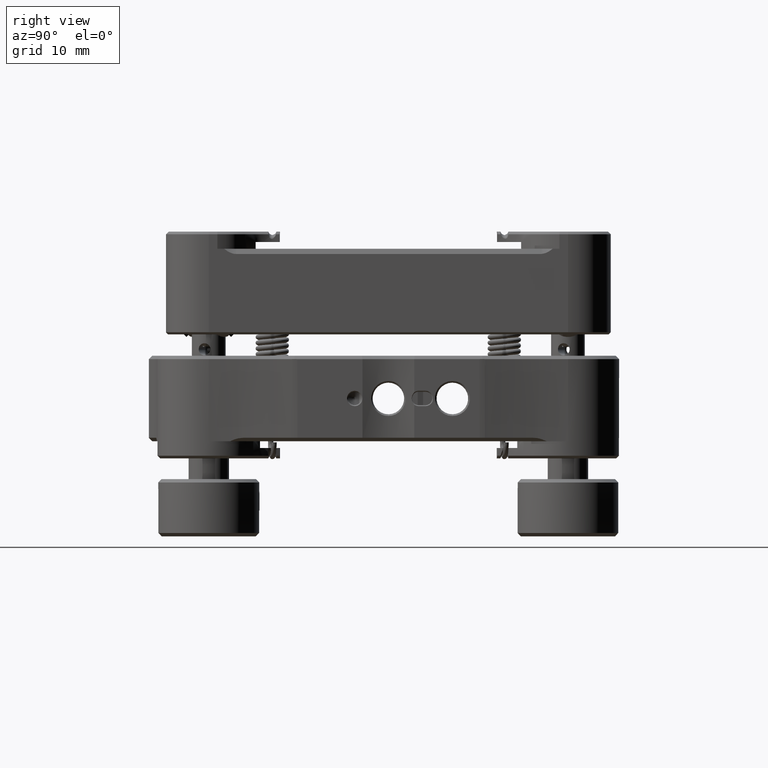
[diagram: clean part render]
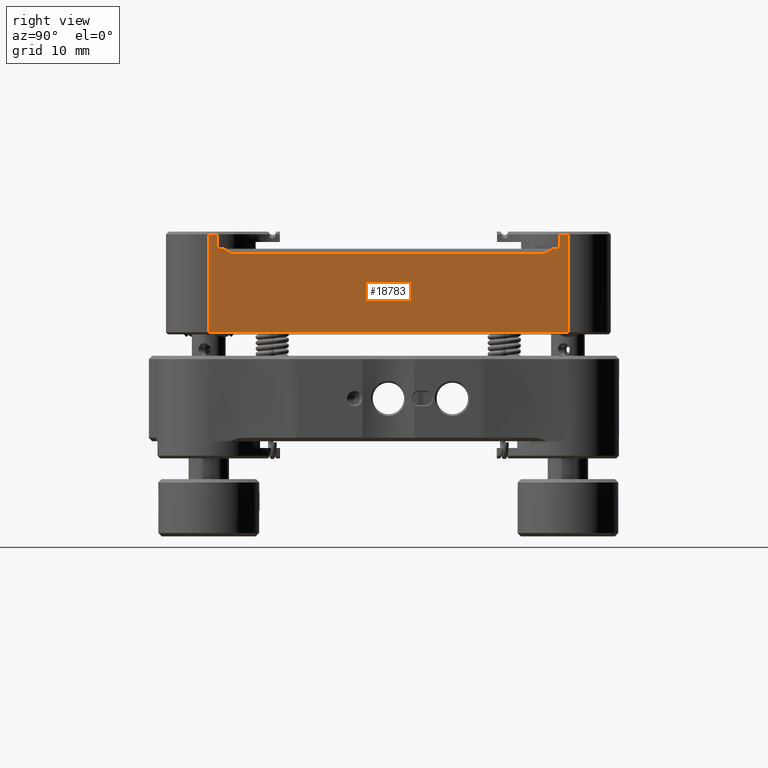
[diagram: same view with one face highlighted and labeled with its STEP entity id]
A machine part, right view. The second image highlights one B-rep face of the part: STEP entity #18783.
In plain terms, the highlighted planar face has unit normal (-1, 0, 0).
Its self-contained STEP definition (entity closure, byte-faithful):
#288 = CARTESIAN_POINT ( 'NONE',  ( 7.643431173105875054, 16.76560714047741385, -29.46676904490498572 ) ) ;
#909 = CARTESIAN_POINT ( 'NONE',  ( 7.643431173106018051, 63.26310505462404166, -29.83921151910093172 ) ) ;
#1400 = CARTESIAN_POINT ( 'NONE',  ( 7.643455526651769638, 63.44368079703394159, -29.82969650420236007 ) ) ;
#1470 = VERTEX_POINT ( 'NONE', #27202 ) ;
#1650 = ORIENTED_EDGE ( 'NONE', *, *, #29366, .F. ) ;
#2223 = CARTESIAN_POINT ( 'NONE',  ( 7.643431173106025156, 67.29924649506358492, -26.91181459346587701 ) ) ;
#2329 = VECTOR ( 'NONE', #9377, 1000.000000000000000 ) ;
#2591 = ORIENTED_EDGE ( 'NONE', *, *, #6883, .F. ) ;
#2684 = VECTOR ( 'NONE', #3651, 1000.000000000000000 ) ;
#2896 = EDGE_LOOP ( 'NONE', ( #3358, #24528, #19994, #14412, #15298, #12916, #12713, #2591, #17419, #1650, #12066, #18148, #7038 ) ) ;
#3358 = ORIENTED_EDGE ( 'NONE', *, *, #21132, .F. ) ;
#3651 = DIRECTION ( 'NONE',  ( 2.999288106964013010E-15, 1.000000000000000000, 0.000000000000000000 ) ) ;
#3693 = CARTESIAN_POINT ( 'NONE',  ( 7.643431173105946108, 40.62924649506368979, -29.07081459346585817 ) ) ;
#4181 = LINE ( 'NONE', #5924, #14025 ) ;
#4229 = CARTESIAN_POINT ( 'NONE',  ( 7.643431173106022491, 66.02291229118191040, -29.07081459346585817 ) ) ;
#4517 = DIRECTION ( 'NONE',  ( 0.000000000000000000, 0.000000000000000000, -1.000000000000000000 ) ) ;
#4523 = EDGE_CURVE ( 'NONE', #30143, #26344, #23012, .T. ) ;
#4655 = LINE ( 'NONE', #23862, #11926 ) ;
#4958 = CARTESIAN_POINT ( 'NONE',  ( 7.643431173105951437, 40.62924649506368979, -41.47081459346583898 ) ) ;
#5096 = VECTOR ( 'NONE', #27420, 1000.000000000000000 ) ;
#5265 = EDGE_CURVE ( 'NONE', #20200, #15993, #22897, .T. ) ;
#5486 = CARTESIAN_POINT ( 'NONE',  ( 7.643431173106019827, 64.79049175125845750, -29.25809718228704526 ) ) ;
#5855 = LINE ( 'NONE', #29942, #27177 ) ;
#5924 = CARTESIAN_POINT ( 'NONE',  ( 7.643431173106022491, 66.02291229118144145, -41.77081459346584325 ) ) ;
#6093 = CARTESIAN_POINT ( 'NONE',  ( 7.643455526651769638, 63.44368079703394159, -29.82969650420236007 ) ) ;
#6883 = EDGE_CURVE ( 'NONE', #9213, #24568, #5855, .T. ) ;
#7038 = ORIENTED_EDGE ( 'NONE', *, *, #22622, .F. ) ;
#7126 = LINE ( 'NONE', #28835, #24524 ) ;
#7689 = CARTESIAN_POINT ( 'NONE',  ( 7.643431395487176871, 18.02324679928495499, -29.84071322471356069 ) ) ;
#8304 = CARTESIAN_POINT ( 'NONE',  ( 7.643431173106017162, 63.31882523026644094, -29.83627383074713535 ) ) ;
#8458 = CARTESIAN_POINT ( 'NONE',  ( 7.643431173106017162, 63.33963480882573549, -29.83518366941570577 ) ) ;
#8480 = CARTESIAN_POINT ( 'NONE',  ( 7.643431173106019827, 65.02116635608771844, -29.07081459346583685 ) ) ;
#8609 = CARTESIAN_POINT ( 'NONE',  ( 7.643431173106014498, 63.42287559404914532, -29.83087035174366264 ) ) ;
#8626 = CARTESIAN_POINT ( 'NONE',  ( 7.643431173106018051, 64.54828199451377202, -29.42810378776596281 ) ) ;
#8762 = EDGE_CURVE ( 'NONE', #26344, #19053, #12947, .T. ) ;
#9213 = VERTEX_POINT ( 'NONE', #11835 ) ;
#9377 = DIRECTION ( 'NONE',  ( -2.804156107416565046E-15, -1.000000000000000000, 1.951319995474474714E-16 ) ) ;
#9681 = LINE ( 'NONE', #4958, #2329 ) ;
#9772 = DIRECTION ( 'NONE',  ( 2.999288106964013010E-15, 1.000000000000000000, 0.000000000000000000 ) ) ;
#10022 = CARTESIAN_POINT ( 'NONE',  ( 7.643431173106013610, 63.23524679928581094, -29.84071441132147129 ) ) ;
#10353 = CARTESIAN_POINT ( 'NONE',  ( 7.643431173105875054, 17.21187765257812430, -29.67882314015497514 ) ) ;
#10657 = CARTESIAN_POINT ( 'NONE',  ( 7.643431173106016274, 63.36044491991760452, -29.83410368311815475 ) ) ;
#10950 = EDGE_CURVE ( 'NONE', #17531, #20200, #27125, .T. ) ;
#10992 = CARTESIAN_POINT ( 'NONE',  ( 7.643431173106014498, 63.74137221275869081, -29.79767250341549101 ) ) ;
#11454 = B_SPLINE_CURVE_WITH_KNOTS ( 'NONE', 3,
 ( #15860, #909, #30023, #8304, #8458, #10657, #18073, #25444, #8609, #6093 ),
 .UNSPECIFIED., .F., .F.,
 ( 4, 3, 3, 4 ),
 ( 9.134209680735828216E-12, 8.369632255898210775E-05, 0.0001462106522723232555, 0.0002087249831261612663 ),
 .UNSPECIFIED. ) ;
#11835 = CARTESIAN_POINT ( 'NONE',  ( 7.643431395487176871, 18.02324679928495499, -29.84071322471356069 ) ) ;
#11926 = VECTOR ( 'NONE', #23647, 1000.000000000000000 ) ;
#12066 = ORIENTED_EDGE ( 'NONE', *, *, #8762, .F. ) ;
#12291 = VECTOR ( 'NONE', #4517, 1000.000000000000000 ) ;
#12713 = ORIENTED_EDGE ( 'NONE', *, *, #16263, .F. ) ;
#12765 = CARTESIAN_POINT ( 'NONE',  ( 7.643431173105946108, 40.62924649506368979, -29.07081459346585461 ) ) ;
#12916 = ORIENTED_EDGE ( 'NONE', *, *, #10950, .F. ) ;
#12947 = LINE ( 'NONE', #22874, #5096 ) ;
#13069 = VERTEX_POINT ( 'NONE', #29825 ) ;
#14025 = VECTOR ( 'NONE', #15844, 1000.000000000000000 ) ;
#14412 = ORIENTED_EDGE ( 'NONE', *, *, #29943, .F. ) ;
#14629 = CARTESIAN_POINT ( 'NONE',  ( 7.643431173105880383, 17.85543303388834246, -29.84071120713803538 ) ) ;
#14894 = VERTEX_POINT ( 'NONE', #29326 ) ;
#15109 = CARTESIAN_POINT ( 'NONE',  ( 7.643431173106019827, 65.02116635608771844, -29.07081459346583685 ) ) ;
#15148 = DIRECTION ( 'NONE',  ( 2.999288106964013010E-15, 1.000000000000000000, 0.000000000000000000 ) ) ;
#15298 = ORIENTED_EDGE ( 'NONE', *, *, #5265, .F. ) ;
#15344 = AXIS2_PLACEMENT_3D ( 'NONE', #16448, #15987, #26037 ) ;
#15844 = DIRECTION ( 'NONE',  ( -0.000000000000000000, -0.000000000000000000, 1.000000000000000000 ) ) ;
#15860 = CARTESIAN_POINT ( 'NONE',  ( 7.643431173106013610, 63.23524679928581094, -29.84071441132147129 ) ) ;
#15987 = DIRECTION ( 'NONE',  ( -1.000000000000000000, 2.999288106964013010E-15, 0.000000000000000000 ) ) ;
#15993 = VERTEX_POINT ( 'NONE', #4229 ) ;
#16074 = EDGE_CURVE ( 'NONE', #1470, #9213, #27469, .T. ) ;
#16135 = PLANE ( 'NONE',  #15344 ) ;
#16263 = EDGE_CURVE ( 'NONE', #24568, #17531, #11454, .T. ) ;
#16448 = CARTESIAN_POINT ( 'NONE',  ( 7.643431173105946108, 40.62924649506368979, -41.77081459346584325 ) ) ;
#17144 = CARTESIAN_POINT ( 'NONE',  ( 7.643431173105873278, 16.23732663403974286, -29.07081459346584396 ) ) ;
#17419 = ORIENTED_EDGE ( 'NONE', *, *, #16074, .F. ) ;
#17531 = VERTEX_POINT ( 'NONE', #26117 ) ;
#17872 = DIRECTION ( 'NONE',  ( 2.999288106964013010E-15, 1.000000000000000000, 0.000000000000000000 ) ) ;
#17976 = EDGE_CURVE ( 'NONE', #21626, #14894, #30972, .T. ) ;
#18073 = CARTESIAN_POINT ( 'NONE',  ( 7.643431173106016274, 63.38125511609900542, -29.83302537590976300 ) ) ;
#18148 = ORIENTED_EDGE ( 'NONE', *, *, #4523, .F. ) ;
#18783 = ADVANCED_FACE ( 'NONE', ( #18816 ), #16135, .F. ) ;
#18816 = FACE_OUTER_BOUND ( 'NONE', #2896, .T. ) ;
#19053 = VERTEX_POINT ( 'NONE', #25460 ) ;
#19643 = CARTESIAN_POINT ( 'NONE',  ( 7.643431173105878607, 17.69139031665920569, -29.81892933803364798 ) ) ;
#19957 = CARTESIAN_POINT ( 'NONE',  ( 7.643431173105876830, 17.36973406144950971, -29.73823049860337520 ) ) ;
#19994 = ORIENTED_EDGE ( 'NONE', *, *, #22832, .F. ) ;
#20032 = DIRECTION ( 'NONE',  ( 2.999288106964013010E-15, 1.000000000000000000, 0.000000000000000000 ) ) ;
#20200 = VERTEX_POINT ( 'NONE', #8480 ) ;
#20594 = CARTESIAN_POINT ( 'NONE',  ( 7.643431173106017162, 64.01891045268074265, -29.70079317858188261 ) ) ;
#20629 = LINE ( 'NONE', #12765, #23548 ) ;
#21132 = EDGE_CURVE ( 'NONE', #14894, #13069, #9681, .T. ) ;
#21461 = CARTESIAN_POINT ( 'NONE',  ( 7.643431173106813858, 15.23558069892677302, -26.91181459346681848 ) ) ;
#21626 = VERTEX_POINT ( 'NONE', #2223 ) ;
#22315 = CARTESIAN_POINT ( 'NONE',  ( 7.643431173105875054, 16.49489780759243374, -29.27993425891133583 ) ) ;
#22622 = EDGE_CURVE ( 'NONE', #13069, #30143, #4655, .T. ) ;
#22805 = CARTESIAN_POINT ( 'NONE',  ( 7.643431173110501575, 66.02291229120031346, -26.91181459347035698 ) ) ;
#22832 = EDGE_CURVE ( 'NONE', #24213, #21626, #7126, .T. ) ;
#22874 = CARTESIAN_POINT ( 'NONE',  ( 7.643431173105870613, 15.23558069894601275, -41.77081459346584325 ) ) ;
#22897 = LINE ( 'NONE', #3693, #23129 ) ;
#23012 = LINE ( 'NONE', #27872, #2684 ) ;
#23129 = VECTOR ( 'NONE', #17872, 1000.000000000000000 ) ;
#23548 = VECTOR ( 'NONE', #15148, 1000.000000000000000 ) ;
#23647 = DIRECTION ( 'NONE',  ( 0.000000000000000000, -0.000000000000000000, 1.000000000000000000 ) ) ;
#23862 = CARTESIAN_POINT ( 'NONE',  ( 7.643431173105864396, 13.95924649506370407, -41.77081459346584325 ) ) ;
#24213 = VERTEX_POINT ( 'NONE', #22805 ) ;
#24524 = VECTOR ( 'NONE', #9772, 1000.000000000000000 ) ;
#24528 = ORIENTED_EDGE ( 'NONE', *, *, #17976, .F. ) ;
#24568 = VERTEX_POINT ( 'NONE', #10022 ) ;
#25444 = CARTESIAN_POINT ( 'NONE',  ( 7.643431173106016274, 63.40206531296334447, -29.83194706866598622 ) ) ;
#25460 = CARTESIAN_POINT ( 'NONE',  ( 7.643431173105870613, 15.23558069894581912, -29.07081459346585461 ) ) ;
#25761 = CARTESIAN_POINT ( 'NONE',  ( 7.643431173106026044, 67.29924649506369860, -41.77081459346584325 ) ) ;
#26037 = DIRECTION ( 'NONE',  ( 2.999288106964013010E-15, 1.000000000000000000, 0.000000000000000000 ) ) ;
#26117 = CARTESIAN_POINT ( 'NONE',  ( 7.643455526651769638, 63.44368079703394159, -29.82969650420236007 ) ) ;
#26344 = VERTEX_POINT ( 'NONE', #21461 ) ;
#26366 = CARTESIAN_POINT ( 'NONE',  ( 7.643431173106317367, 13.95924649506370585, -26.91181459347130200 ) ) ;
#27125 = B_SPLINE_CURVE_WITH_KNOTS ( 'NONE', 3,
 ( #1400, #10992, #20594, #8626, #5486, #15109 ),
 .UNSPECIFIED., .F., .F.,
 ( 4, 2, 4 ),
 ( 1.353601012674425438E-12, 0.0008807750111236741213, 0.001761550020893747201 ),
 .UNSPECIFIED. ) ;
#27177 = VECTOR ( 'NONE', #20032, 1000.000000000000000 ) ;
#27202 = CARTESIAN_POINT ( 'NONE',  ( 7.643431173105873278, 16.23732663403974286, -29.07081459346584396 ) ) ;
#27420 = DIRECTION ( 'NONE',  ( 0.000000000000000000, 0.000000000000000000, -1.000000000000000000 ) ) ;
#27469 = B_SPLINE_CURVE_WITH_KNOTS ( 'NONE', 3,
 ( #17144, #22315, #288, #10353, #19957, #19643, #14629, #7689 ),
 .UNSPECIFIED., .F., .F.,
 ( 4, 2, 2, 4 ),
 ( 3.273069708340168845E-17, 0.0009842573379883088822, 0.001476386006982444892, 0.001968514675976580468 ),
 .UNSPECIFIED. ) ;
#27872 = CARTESIAN_POINT ( 'NONE',  ( 7.643431173105946108, 40.62924649506368979, -26.91181459346591964 ) ) ;
#28835 = CARTESIAN_POINT ( 'NONE',  ( 7.643431173105946108, 40.62924649506368979, -26.91181459346586635 ) ) ;
#29326 = CARTESIAN_POINT ( 'NONE',  ( 7.643431173106472798, 67.29924649506362755, -41.47081459347618448 ) ) ;
#29366 = EDGE_CURVE ( 'NONE', #19053, #1470, #20629, .T. ) ;
#29825 = CARTESIAN_POINT ( 'NONE',  ( 7.643431173106772114, 13.95924649506369875, -41.47081459356081012 ) ) ;
#29942 = CARTESIAN_POINT ( 'NONE',  ( 7.643431173105946108, 40.62924649506368979, -29.84071406160622786 ) ) ;
#29943 = EDGE_CURVE ( 'NONE', #15993, #24213, #4181, .T. ) ;
#30023 = CARTESIAN_POINT ( 'NONE',  ( 7.643431173106017162, 63.29096466082477690, -29.83773337570573858 ) ) ;
#30143 = VERTEX_POINT ( 'NONE', #26366 ) ;
#30972 = LINE ( 'NONE', #25761, #12291 ) ;